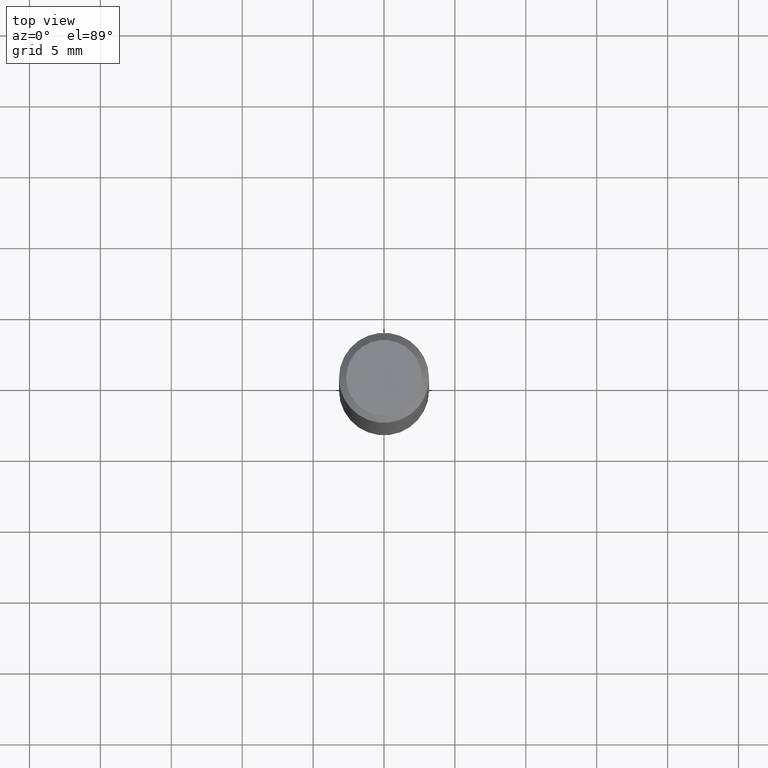
[diagram: clean part render]
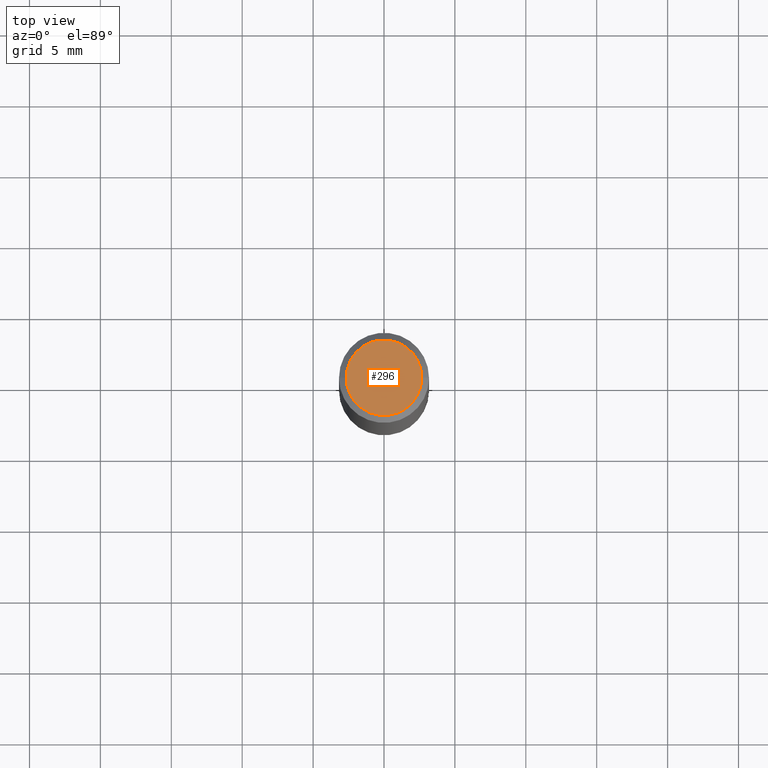
[diagram: same view with one face highlighted and labeled with its STEP entity id]
A machine part, top view. The second image highlights one B-rep face of the part: STEP entity #296.
In plain terms, the highlighted planar face has unit normal (0, -0, -1).
Its self-contained STEP definition (entity closure, byte-faithful):
#5 = EDGE_CURVE ( 'NONE', #95, #68, #44, .T. ) ;
#16 = ORIENTED_EDGE ( 'NONE', *, *, #89, .T. ) ;
#30 = CARTESIAN_POINT ( 'NONE',  ( 0.000000000000000000, 0.000000000000000000, 0.000000000000000000 ) ) ;
#32 = CARTESIAN_POINT ( 'NONE',  ( 7.332110811570569396E-16, 0.1049999999999998573, -3.666055405785298010E-16 ) ) ;
#44 = CIRCLE ( 'NONE', #276, 0.1049999999999998573 ) ;
#68 = VERTEX_POINT ( 'NONE', #283 ) ;
#89 = EDGE_CURVE ( 'NONE', #68, #95, #102, .T. ) ;
#95 = VERTEX_POINT ( 'NONE', #170 ) ;
#102 = CIRCLE ( 'NONE', #188, 0.1049999999999998573 ) ;
#107 = DIRECTION ( 'NONE',  ( 2.438088387897960049E-29, -3.491481338843145188E-15, -1.000000000000000000 ) ) ;
#112 = DIRECTION ( 'NONE',  ( -2.445468806185136597E-29, 3.491481338843145583E-15, 1.000000000000000000 ) ) ;
#169 = DIRECTION ( 'NONE',  ( 1.000000000000000000, -6.982962677686265922E-15, 4.876176775795935232E-29 ) ) ;
#170 = CARTESIAN_POINT ( 'NONE',  ( -0.1049999999999998573, 7.681258945454880957E-16, -5.249639473182158869E-30 ) ) ;
#187 = ORIENTED_EDGE ( 'NONE', *, *, #5, .T. ) ;
#188 = AXIS2_PLACEMENT_3D ( 'NONE', #200, #236, #169 ) ;
#200 = CARTESIAN_POINT ( 'NONE',  ( 0.000000000000000000, 0.000000000000000000, 0.000000000000000000 ) ) ;
#230 = PLANE ( 'NONE',  #253 ) ;
#234 = EDGE_LOOP ( 'NONE', ( #187, #16 ) ) ;
#236 = DIRECTION ( 'NONE',  ( -2.445468806185136597E-29, 3.491481338843145583E-15, 1.000000000000000000 ) ) ;
#253 = AXIS2_PLACEMENT_3D ( 'NONE', #32, #107, #263 ) ;
#256 = FACE_OUTER_BOUND ( 'NONE', #234, .T. ) ;
#263 = DIRECTION ( 'NONE',  ( -1.000000000000000000, 6.982962677686265922E-15, -4.876176775795935793E-29 ) ) ;
#276 = AXIS2_PLACEMENT_3D ( 'NONE', #30, #112, #290 ) ;
#283 = CARTESIAN_POINT ( 'NONE',  ( 0.1049999999999998573, -8.238720831321564811E-16, 5.444276250344142358E-30 ) ) ;
#290 = DIRECTION ( 'NONE',  ( 1.000000000000000000, -6.982962677686265922E-15, 4.876176775795935232E-29 ) ) ;
#296 = ADVANCED_FACE ( 'NONE', ( #256 ), #230, .F. ) ;